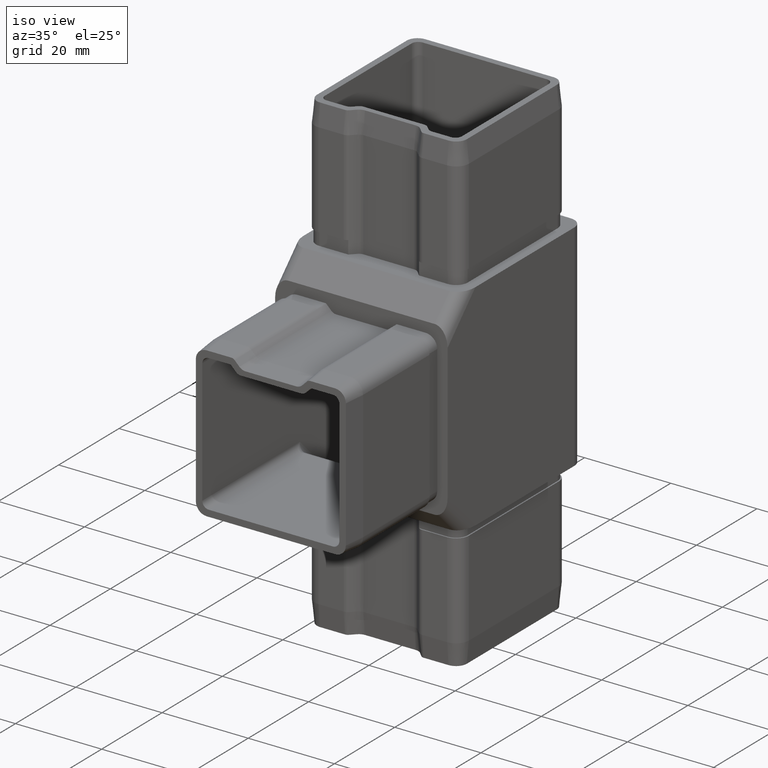
[diagram: clean part render]
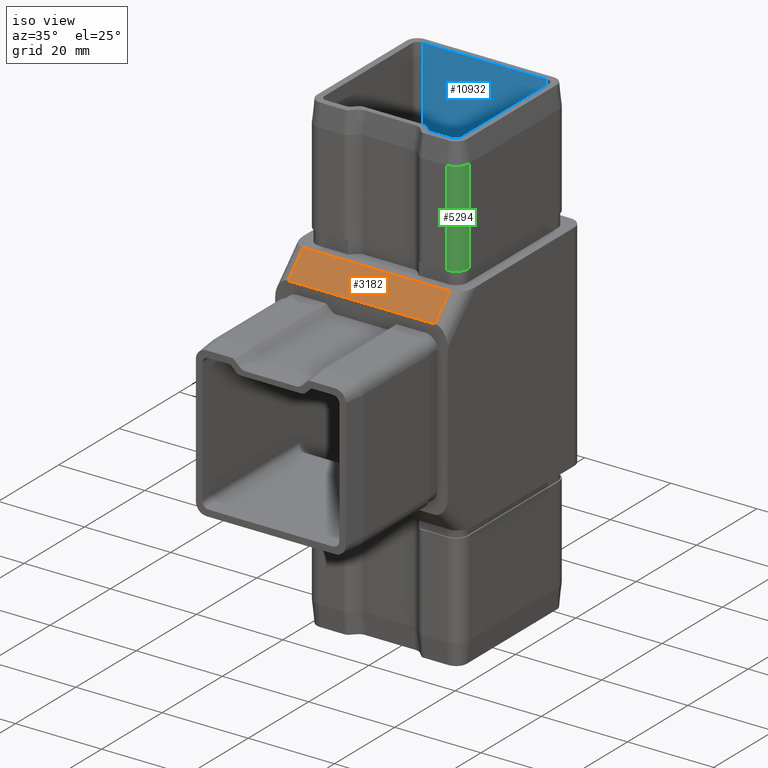
[diagram: same view with three faces highlighted in distinct colors, each labeled with its STEP entity id]
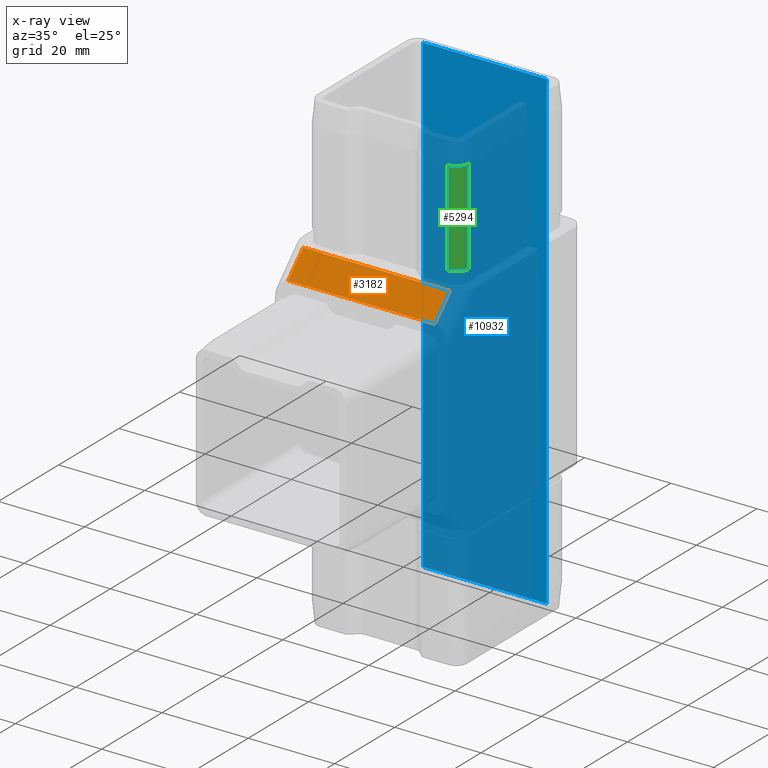
[diagram: x-ray of the same camera — body ghosted, the three highlighted faces saturated]
A machine part, iso view with three faces highlighted in distinct colors.
The next image is the same camera in x-ray (body ghosted, the three faces saturated) — at least one of them is partly hidden behind the body in this view.
Their STEP definitions:

[orange] entity #3182 — the highlighted planar face has unit normal (-0, -0.7071, 0.7071).
#245 = VECTOR ( 'NONE', #16149, 1000.000000000000100 ) ;
#749 = ORIENTED_EDGE ( 'NONE', *, *, #5306, .F. ) ;
#1975 = DIRECTION ( 'NONE',  ( -1.090341985197063700E-016, 0.7071067811865460200, 0.7071067811865489100 ) ) ;
#2375 = CARTESIAN_POINT ( 'NONE',  ( 0.0000000000000000000, -17.50000000000000000, 25.00000000000000000 ) ) ;
#2568 = VERTEX_POINT ( 'NONE', #7557 ) ;
#3007 = VECTOR ( 'NONE', #3782, 1000.000000000000000 ) ;
#3182 = ADVANCED_FACE ( 'NONE', ( #6585 ), #5369, .T. ) ;
#3782 = DIRECTION ( 'NONE',  ( -1.000000000000000000, 0.0000000000000000000, 0.0000000000000000000 ) ) ;
#3949 = ORIENTED_EDGE ( 'NONE', *, *, #14036, .F. ) ;
#3991 = VERTEX_POINT ( 'NONE', #10515 ) ;
#4837 = ORIENTED_EDGE ( 'NONE', *, *, #8194, .T. ) ;
#5133 = CARTESIAN_POINT ( 'NONE',  ( 20.00000000000000400, -17.50000000000000000, 25.00000000000000000 ) ) ;
#5306 = EDGE_CURVE ( 'NONE', #8739, #2568, #13938, .T. ) ;
#5369 = PLANE ( 'NONE',  #6996 ) ;
#5968 = CARTESIAN_POINT ( 'NONE',  ( -16.99999999999999600, -22.50000000000000000, 19.99999999999998200 ) ) ;
#6585 = FACE_OUTER_BOUND ( 'NONE', #12956, .T. ) ;
#6996 = AXIS2_PLACEMENT_3D ( 'NONE', #2375, #12756, #12693 ) ;
#7414 = LINE ( 'NONE', #15709, #3007 ) ;
#7557 = CARTESIAN_POINT ( 'NONE',  ( 17.00000000000000400, -17.50000000000000000, 25.00000000000000000 ) ) ;
#8122 = LINE ( 'NONE', #17583, #245 ) ;
#8194 = EDGE_CURVE ( 'NONE', #3991, #2568, #17503, .T. ) ;
#8739 = VERTEX_POINT ( 'NONE', #16594 ) ;
#10515 = CARTESIAN_POINT ( 'NONE',  ( 17.00000000000000700, -22.50000000000000000, 19.99999999999998200 ) ) ;
#11120 = DIRECTION ( 'NONE',  ( 1.000000000000000000, 0.0000000000000000000, 0.0000000000000000000 ) ) ;
#12693 = DIRECTION ( 'NONE',  ( -1.000000000000000000, 0.0000000000000000000, -0.0000000000000000000 ) ) ;
#12756 = DIRECTION ( 'NONE',  ( -0.0000000000000000000, -0.7071067811865490200, 0.7071067811865461300 ) ) ;
#12956 = EDGE_LOOP ( 'NONE', ( #749, #18906, #3949, #4837 ) ) ;
#13487 = EDGE_CURVE ( 'NONE', #8739, #14966, #8122, .T. ) ;
#13496 = VECTOR ( 'NONE', #11120, 1000.000000000000000 ) ;
#13567 = VECTOR ( 'NONE', #1975, 1000.000000000000100 ) ;
#13938 = LINE ( 'NONE', #5133, #13496 ) ;
#14036 = EDGE_CURVE ( 'NONE', #3991, #14966, #7414, .T. ) ;
#14966 = VERTEX_POINT ( 'NONE', #5968 ) ;
#15709 = CARTESIAN_POINT ( 'NONE',  ( -19.99999999999999600, -22.50000000000000000, 19.99999999999998200 ) ) ;
#16149 = DIRECTION ( 'NONE',  ( 1.090341985197063700E-016, -0.7071067811865460200, -0.7071067811865489100 ) ) ;
#16249 = CARTESIAN_POINT ( 'NONE',  ( 17.00000000000000400, -17.49999999999999600, 25.00000000000000400 ) ) ;
#16594 = CARTESIAN_POINT ( 'NONE',  ( -17.00000000000000000, -17.50000000000000000, 25.00000000000000000 ) ) ;
#17503 = LINE ( 'NONE', #16249, #13567 ) ;
#17583 = CARTESIAN_POINT ( 'NONE',  ( -16.99999999999999600, -22.50000000000000000, 19.99999999999998200 ) ) ;
#18906 = ORIENTED_EDGE ( 'NONE', *, *, #13487, .T. ) ;

[blue] entity #10932 — the highlighted planar face has unit normal (0, -1, 0).
#474 = VERTEX_POINT ( 'NONE', #18854 ) ;
#598 = LINE ( 'NONE', #11515, #2449 ) ;
#631 = DIRECTION ( 'NONE',  ( 0.0000000000000000000, 0.0000000000000000000, 1.000000000000000000 ) ) ;
#1366 = DIRECTION ( 'NONE',  ( 0.0000000000000000000, 0.0000000000000000000, -1.000000000000000000 ) ) ;
#2449 = VECTOR ( 'NONE', #7314, 1000.000000000000000 ) ;
#2499 = ORIENTED_EDGE ( 'NONE', *, *, #18735, .T. ) ;
#3022 = VERTEX_POINT ( 'NONE', #14144 ) ;
#3064 = VECTOR ( 'NONE', #5721, 1000.000000000000000 ) ;
#4010 = LINE ( 'NONE', #14868, #9572 ) ;
#4221 = ORIENTED_EDGE ( 'NONE', *, *, #5453, .T. ) ;
#4341 = CARTESIAN_POINT ( 'NONE',  ( -20.00000000000000400, 18.39999999999999900, 25.00000000000000000 ) ) ;
#4912 = CARTESIAN_POINT ( 'NONE',  ( 0.0000000000000000000, 18.39999999999999900, -55.00000000000000000 ) ) ;
#5023 = DIRECTION ( 'NONE',  ( -0.0000000000000000000, -0.0000000000000000000, 1.000000000000000000 ) ) ;
#5269 = CARTESIAN_POINT ( 'NONE',  ( 14.39999999999999900, 18.39999999999999900, 19.99999999999999600 ) ) ;
#5360 = LINE ( 'NONE', #13881, #17646 ) ;
#5453 = EDGE_CURVE ( 'NONE', #9179, #6984, #14634, .T. ) ;
#5616 = ORIENTED_EDGE ( 'NONE', *, *, #12194, .T. ) ;
#5721 = DIRECTION ( 'NONE',  ( 0.0000000000000000000, 0.0000000000000000000, -1.000000000000000000 ) ) ;
#5723 = CARTESIAN_POINT ( 'NONE',  ( 14.39999999999999900, 18.39999999999999900, 55.00000000000000000 ) ) ;
#5837 = LINE ( 'NONE', #9755, #12796 ) ;
#5997 = CARTESIAN_POINT ( 'NONE',  ( 14.39999999999999700, 18.39999999999999900, -19.99999999999999600 ) ) ;
#6045 = ORIENTED_EDGE ( 'NONE', *, *, #15118, .T. ) ;
#6202 = CARTESIAN_POINT ( 'NONE',  ( 14.39999999999999700, 18.39999999999999900, -55.00000000000000000 ) ) ;
#6744 = VECTOR ( 'NONE', #631, 1000.000000000000000 ) ;
#6794 = EDGE_CURVE ( 'NONE', #14720, #13460, #598, .T. ) ;
#6976 = DIRECTION ( 'NONE',  ( 1.000000000000000000, 0.0000000000000000000, 0.0000000000000000000 ) ) ;
#6984 = VERTEX_POINT ( 'NONE', #5997 ) ;
#7314 = DIRECTION ( 'NONE',  ( -0.0000000000000000000, -0.0000000000000000000, 1.000000000000000000 ) ) ;
#7438 = EDGE_CURVE ( 'NONE', #3022, #14967, #13123, .T. ) ;
#7512 = DIRECTION ( 'NONE',  ( 0.0000000000000000000, -1.000000000000000000, 0.0000000000000000000 ) ) ;
#7877 = DIRECTION ( 'NONE',  ( 1.000000000000000000, 0.0000000000000000000, 0.0000000000000000000 ) ) ;
#8261 = AXIS2_PLACEMENT_3D ( 'NONE', #4341, #7512, #18007 ) ;
#9179 = VERTEX_POINT ( 'NONE', #6202 ) ;
#9572 = VECTOR ( 'NONE', #19214, 1000.000000000000000 ) ;
#9755 = CARTESIAN_POINT ( 'NONE',  ( 0.0000000000000000000, 18.39999999999999900, 55.00000000000000000 ) ) ;
#9802 = FACE_OUTER_BOUND ( 'NONE', #15828, .T. ) ;
#10170 = CARTESIAN_POINT ( 'NONE',  ( -14.40000000000000400, 18.39999999999999900, 19.99999999999999600 ) ) ;
#10237 = CARTESIAN_POINT ( 'NONE',  ( -14.40000000000000400, 18.39999999999999900, -25.00000000000000000 ) ) ;
#10583 = CARTESIAN_POINT ( 'NONE',  ( -14.40000000000000400, 18.39999999999999900, 55.00000000000000000 ) ) ;
#10932 = ADVANCED_FACE ( 'NONE', ( #9802 ), #15993, .T. ) ;
#11515 = CARTESIAN_POINT ( 'NONE',  ( 14.39999999999999900, 18.39999999999999900, 55.00000000000000000 ) ) ;
#12194 = EDGE_CURVE ( 'NONE', #14520, #3022, #15816, .T. ) ;
#12201 = VECTOR ( 'NONE', #1366, 1000.000000000000000 ) ;
#12705 = ORIENTED_EDGE ( 'NONE', *, *, #18432, .F. ) ;
#12796 = VECTOR ( 'NONE', #6976, 1000.000000000000000 ) ;
#13123 = LINE ( 'NONE', #10237, #12201 ) ;
#13460 = VERTEX_POINT ( 'NONE', #5723 ) ;
#13657 = ORIENTED_EDGE ( 'NONE', *, *, #7438, .T. ) ;
#13881 = CARTESIAN_POINT ( 'NONE',  ( 14.39999999999999900, 18.39999999999999900, 25.00000000000000000 ) ) ;
#14144 = CARTESIAN_POINT ( 'NONE',  ( -14.40000000000000400, 18.39999999999999900, 19.99999999999999600 ) ) ;
#14520 = VERTEX_POINT ( 'NONE', #10583 ) ;
#14634 = LINE ( 'NONE', #18404, #6744 ) ;
#14720 = VERTEX_POINT ( 'NONE', #5269 ) ;
#14730 = ORIENTED_EDGE ( 'NONE', *, *, #16417, .T. ) ;
#14868 = CARTESIAN_POINT ( 'NONE',  ( -14.40000000000000600, 18.39999999999999900, -55.00000000000000000 ) ) ;
#14967 = VERTEX_POINT ( 'NONE', #16405 ) ;
#15118 = EDGE_CURVE ( 'NONE', #474, #9179, #15517, .T. ) ;
#15183 = ORIENTED_EDGE ( 'NONE', *, *, #6794, .T. ) ;
#15517 = LINE ( 'NONE', #4912, #16684 ) ;
#15816 = LINE ( 'NONE', #10170, #3064 ) ;
#15828 = EDGE_LOOP ( 'NONE', ( #6045, #4221, #2499, #15183, #12705, #5616, #13657, #14730 ) ) ;
#15993 = PLANE ( 'NONE',  #8261 ) ;
#16405 = CARTESIAN_POINT ( 'NONE',  ( -14.40000000000000400, 18.39999999999999900, -19.99999999999999600 ) ) ;
#16417 = EDGE_CURVE ( 'NONE', #14967, #474, #4010, .T. ) ;
#16684 = VECTOR ( 'NONE', #7877, 1000.000000000000000 ) ;
#17646 = VECTOR ( 'NONE', #5023, 1000.000000000000000 ) ;
#18007 = DIRECTION ( 'NONE',  ( 0.0000000000000000000, -0.0000000000000000000, -1.000000000000000000 ) ) ;
#18404 = CARTESIAN_POINT ( 'NONE',  ( 14.39999999999999700, 18.39999999999999900, -19.99999999999999600 ) ) ;
#18432 = EDGE_CURVE ( 'NONE', #14520, #13460, #5837, .T. ) ;
#18735 = EDGE_CURVE ( 'NONE', #6984, #14720, #5360, .T. ) ;
#18854 = CARTESIAN_POINT ( 'NONE',  ( -14.40000000000000600, 18.39999999999999900, -55.00000000000000000 ) ) ;
#19214 = DIRECTION ( 'NONE',  ( -0.0000000000000000000, -0.0000000000000000000, -1.000000000000000000 ) ) ;

[green] entity #5294 — the highlighted cylindrical surface (edge-blend (fillet) strip) has radius 3 mm, axis along (0, 0, -1).
#42 = CIRCLE ( 'NONE', #3910, 2.999999999999997300 ) ;
#58 = CYLINDRICAL_SURFACE ( 'NONE', #16637, 3.000000000000000900 ) ;
#536 = CARTESIAN_POINT ( 'NONE',  ( 17.90000000000000600, -12.39999999999999500, 50.00000000000000000 ) ) ;
#1478 = EDGE_CURVE ( 'NONE', #9956, #14565, #2495, .T. ) ;
#2018 = DIRECTION ( 'NONE',  ( -0.0000000000000000000, -0.0000000000000000000, -1.000000000000000000 ) ) ;
#2495 = LINE ( 'NONE', #8321, #13858 ) ;
#2502 = DIRECTION ( 'NONE',  ( -0.0000000000000000000, -0.0000000000000000000, -1.000000000000000000 ) ) ;
#3910 = AXIS2_PLACEMENT_3D ( 'NONE', #17301, #2502, #4075 ) ;
#4003 = CIRCLE ( 'NONE', #9005, 2.999999999999993800 ) ;
#4075 = DIRECTION ( 'NONE',  ( -1.000000000000000000, 0.0000000000000000000, 0.0000000000000000000 ) ) ;
#4894 = CARTESIAN_POINT ( 'NONE',  ( 14.90000000000000200, -15.39999999999998600, 28.00000000000000000 ) ) ;
#5294 = ADVANCED_FACE ( 'NONE', ( #6080 ), #58, .T. ) ;
#6080 = FACE_OUTER_BOUND ( 'NONE', #9555, .T. ) ;
#6234 = CARTESIAN_POINT ( 'NONE',  ( 14.90000000000000900, -15.39999999999999000, 50.00000000000000000 ) ) ;
#6595 = ORIENTED_EDGE ( 'NONE', *, *, #14286, .F. ) ;
#7143 = ORIENTED_EDGE ( 'NONE', *, *, #1478, .F. ) ;
#8321 = CARTESIAN_POINT ( 'NONE',  ( 14.90000000000000900, -15.39999999999999300, 55.00000000000000000 ) ) ;
#8619 = ORIENTED_EDGE ( 'NONE', *, *, #11539, .F. ) ;
#8800 = DIRECTION ( 'NONE',  ( -1.000000000000000000, 0.0000000000000000000, 0.0000000000000000000 ) ) ;
#9005 = AXIS2_PLACEMENT_3D ( 'NONE', #10890, #2018, #13754 ) ;
#9483 = VECTOR ( 'NONE', #16154, 1000.000000000000000 ) ;
#9555 = EDGE_LOOP ( 'NONE', ( #16577, #7143, #8619, #6595 ) ) ;
#9956 = VERTEX_POINT ( 'NONE', #4894 ) ;
#10890 = CARTESIAN_POINT ( 'NONE',  ( 14.90000000000000900, -12.39999999999999500, 28.00000000000000000 ) ) ;
#11343 = LINE ( 'NONE', #15907, #9483 ) ;
#11539 = EDGE_CURVE ( 'NONE', #12815, #9956, #4003, .T. ) ;
#12536 = EDGE_CURVE ( 'NONE', #17421, #14565, #42, .T. ) ;
#12815 = VERTEX_POINT ( 'NONE', #14834 ) ;
#13754 = DIRECTION ( 'NONE',  ( -1.000000000000000000, 0.0000000000000000000, 0.0000000000000000000 ) ) ;
#13858 = VECTOR ( 'NONE', #18705, 1000.000000000000000 ) ;
#14286 = EDGE_CURVE ( 'NONE', #17421, #12815, #11343, .T. ) ;
#14565 = VERTEX_POINT ( 'NONE', #6234 ) ;
#14834 = CARTESIAN_POINT ( 'NONE',  ( 17.90000000000000200, -12.39999999999999500, 28.00000000000000000 ) ) ;
#15450 = CARTESIAN_POINT ( 'NONE',  ( 14.90000000000000900, -12.39999999999999500, 55.00000000000000000 ) ) ;
#15907 = CARTESIAN_POINT ( 'NONE',  ( 17.90000000000000600, -12.39999999999999500, 55.00000000000000000 ) ) ;
#16154 = DIRECTION ( 'NONE',  ( 0.0000000000000000000, 0.0000000000000000000, -1.000000000000000000 ) ) ;
#16172 = DIRECTION ( 'NONE',  ( 0.0000000000000000000, 0.0000000000000000000, -1.000000000000000000 ) ) ;
#16577 = ORIENTED_EDGE ( 'NONE', *, *, #12536, .T. ) ;
#16637 = AXIS2_PLACEMENT_3D ( 'NONE', #15450, #16172, #8800 ) ;
#17301 = CARTESIAN_POINT ( 'NONE',  ( 14.90000000000000900, -12.39999999999999500, 50.00000000000000000 ) ) ;
#17421 = VERTEX_POINT ( 'NONE', #536 ) ;
#18705 = DIRECTION ( 'NONE',  ( -0.0000000000000000000, -0.0000000000000000000, 1.000000000000000000 ) ) ;